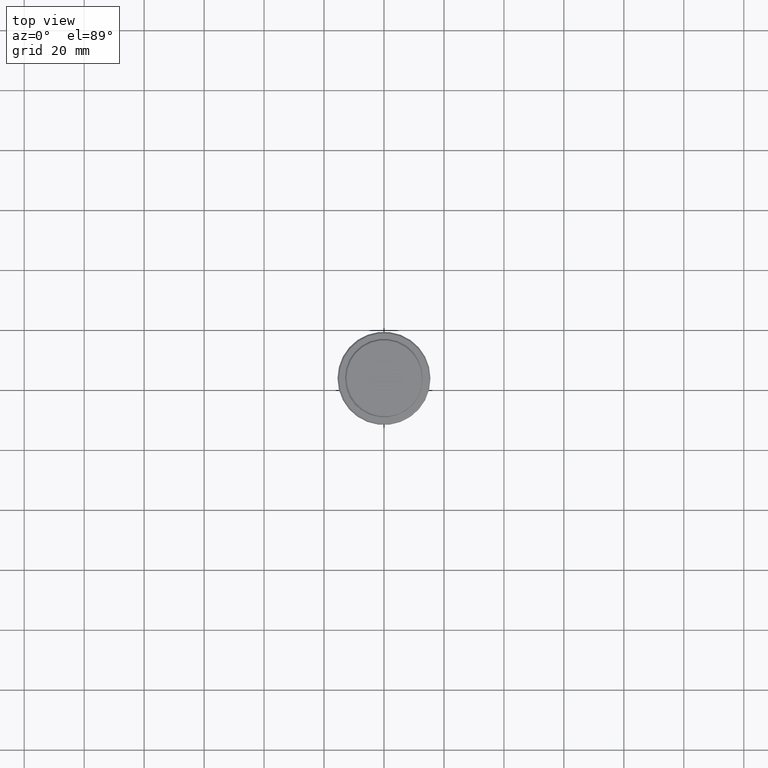
[diagram: clean part render]
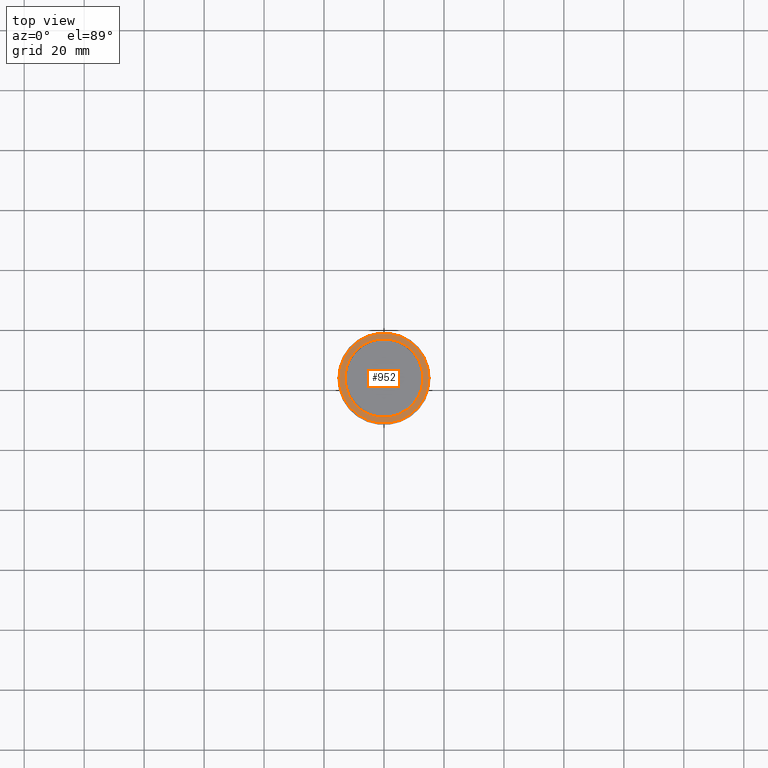
[diagram: same view with one face highlighted and labeled with its STEP entity id]
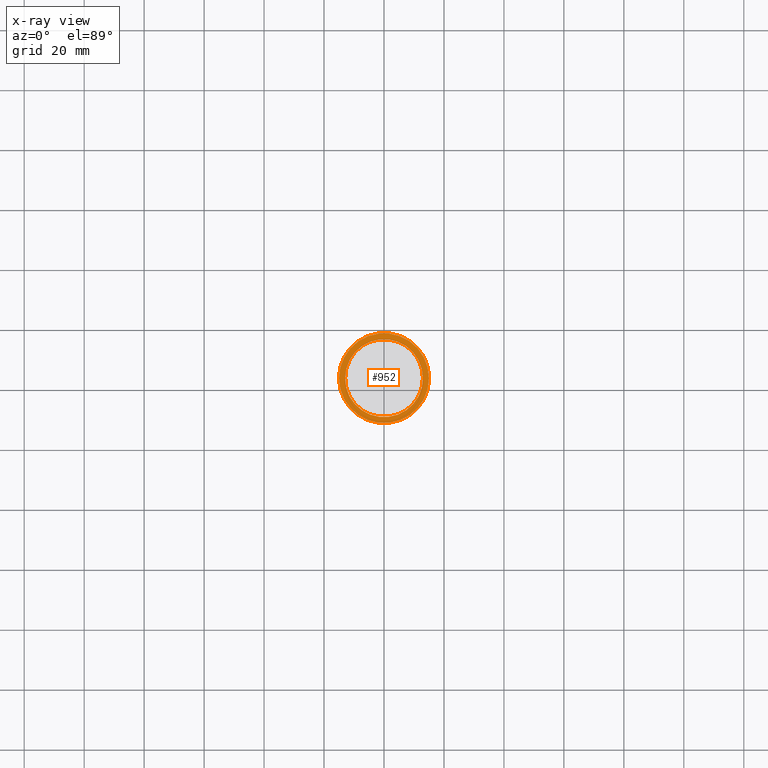
[diagram: x-ray of the same camera — body ghosted, the highlighted face saturated]
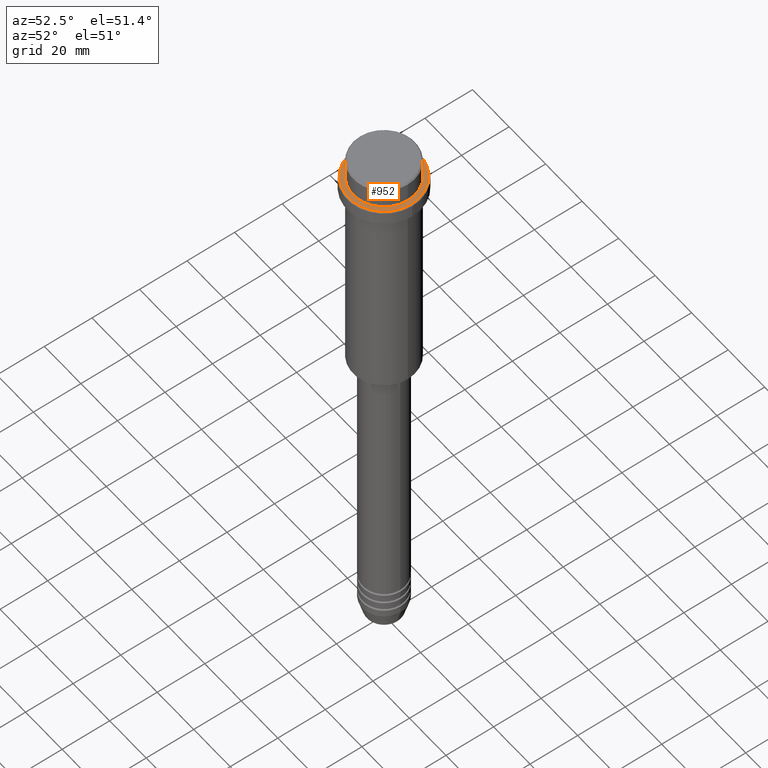
[diagram: same view with one face highlighted and labeled with its STEP entity id]
A machine part, top view. The second image highlights one B-rep face of the part: STEP entity #952.
The next image is the same camera in x-ray: the body ghosted, the highlighted face saturated — about 0% of this face is hidden behind the body in this view.
A second angle (auxiliary view) of the same face is appended — the face is thin or edge-on in the first view.
In plain terms, the highlighted planar face has unit normal (0, -0, 1).
Its self-contained STEP definition (entity closure, byte-faithful):
#9 = CIRCLE ( 'NONE', #192, 12.99999999999999467 ) ;
#86 = EDGE_LOOP ( 'NONE', ( #1069, #626 ) ) ;
#101 = CIRCLE ( 'NONE', #118, 12.99999999999999467 ) ;
#118 = AXIS2_PLACEMENT_3D ( 'NONE', #162, #719, #1370 ) ;
#138 = DIRECTION ( 'NONE',  ( 0.000000000000000000, 0.000000000000000000, -1.000000000000000000 ) ) ;
#162 = CARTESIAN_POINT ( 'NONE',  ( 0.000000000000000000, 0.000000000000000000, -9.000000000000001776 ) ) ;
#192 = AXIS2_PLACEMENT_3D ( 'NONE', #1116, #138, #1018 ) ;
#208 = ORIENTED_EDGE ( 'NONE', *, *, #339, .T. ) ;
#217 = VERTEX_POINT ( 'NONE', #1188 ) ;
#218 = AXIS2_PLACEMENT_3D ( 'NONE', #895, #436, #1340 ) ;
#225 = VERTEX_POINT ( 'NONE', #653 ) ;
#252 = DIRECTION ( 'NONE',  ( 1.000000000000000000, 0.000000000000000000, 0.000000000000000000 ) ) ;
#301 = EDGE_LOOP ( 'NONE', ( #1158, #208 ) ) ;
#339 = EDGE_CURVE ( 'NONE', #1090, #217, #1385, .T. ) ;
#342 = CARTESIAN_POINT ( 'NONE',  ( 0.000000000000000000, 0.000000000000000000, -9.000000000000001776 ) ) ;
#349 = EDGE_CURVE ( 'NONE', #225, #890, #9, .T. ) ;
#357 = CARTESIAN_POINT ( 'NONE',  ( 12.99999999999999467, 0.000000000000000000, -9.000000000000001776 ) ) ;
#436 = DIRECTION ( 'NONE',  ( 0.000000000000000000, -0.000000000000000000, 1.000000000000000000 ) ) ;
#439 = EDGE_CURVE ( 'NONE', #890, #225, #101, .T. ) ;
#443 = CIRCLE ( 'NONE', #686, 14.99999999999998579 ) ;
#626 = ORIENTED_EDGE ( 'NONE', *, *, #349, .T. ) ;
#653 = CARTESIAN_POINT ( 'NONE',  ( -12.99999999999999467, 1.592040838891558504E-15, -9.000000000000001776 ) ) ;
#681 = FACE_OUTER_BOUND ( 'NONE', #301, .T. ) ;
#686 = AXIS2_PLACEMENT_3D ( 'NONE', #847, #1288, #823 ) ;
#719 = DIRECTION ( 'NONE',  ( 0.000000000000000000, 0.000000000000000000, -1.000000000000000000 ) ) ;
#782 = EDGE_CURVE ( 'NONE', #217, #1090, #443, .T. ) ;
#785 = PLANE ( 'NONE',  #218 ) ;
#823 = DIRECTION ( 'NONE',  ( 1.000000000000000000, 0.000000000000000000, 0.000000000000000000 ) ) ;
#847 = CARTESIAN_POINT ( 'NONE',  ( 0.000000000000000000, 0.000000000000000000, -9.000000000000001776 ) ) ;
#876 = DIRECTION ( 'NONE',  ( -0.000000000000000000, -0.000000000000000000, 1.000000000000000000 ) ) ;
#890 = VERTEX_POINT ( 'NONE', #357 ) ;
#895 = CARTESIAN_POINT ( 'NONE',  ( 0.000000000000000000, 12.49999999999999289, -9.000000000000001776 ) ) ;
#945 = AXIS2_PLACEMENT_3D ( 'NONE', #342, #876, #252 ) ;
#952 = ADVANCED_FACE ( 'NONE', ( #681, #1417 ), #785, .T. ) ;
#1018 = DIRECTION ( 'NONE',  ( 1.000000000000000000, 0.000000000000000000, 0.000000000000000000 ) ) ;
#1069 = ORIENTED_EDGE ( 'NONE', *, *, #439, .T. ) ;
#1090 = VERTEX_POINT ( 'NONE', #1265 ) ;
#1116 = CARTESIAN_POINT ( 'NONE',  ( 0.000000000000000000, 0.000000000000000000, -9.000000000000001776 ) ) ;
#1158 = ORIENTED_EDGE ( 'NONE', *, *, #782, .T. ) ;
#1188 = CARTESIAN_POINT ( 'NONE',  ( -14.99999999999998579, 0.000000000000000000, -9.000000000000001776 ) ) ;
#1265 = CARTESIAN_POINT ( 'NONE',  ( 14.99999999999998579, 1.867586368699712587E-15, -9.000000000000001776 ) ) ;
#1288 = DIRECTION ( 'NONE',  ( -0.000000000000000000, -0.000000000000000000, 1.000000000000000000 ) ) ;
#1340 = DIRECTION ( 'NONE',  ( 1.000000000000000000, 0.000000000000000000, 0.000000000000000000 ) ) ;
#1370 = DIRECTION ( 'NONE',  ( 1.000000000000000000, 0.000000000000000000, 0.000000000000000000 ) ) ;
#1385 = CIRCLE ( 'NONE', #945, 14.99999999999998579 ) ;
#1417 = FACE_BOUND ( 'NONE', #86, .T. ) ;